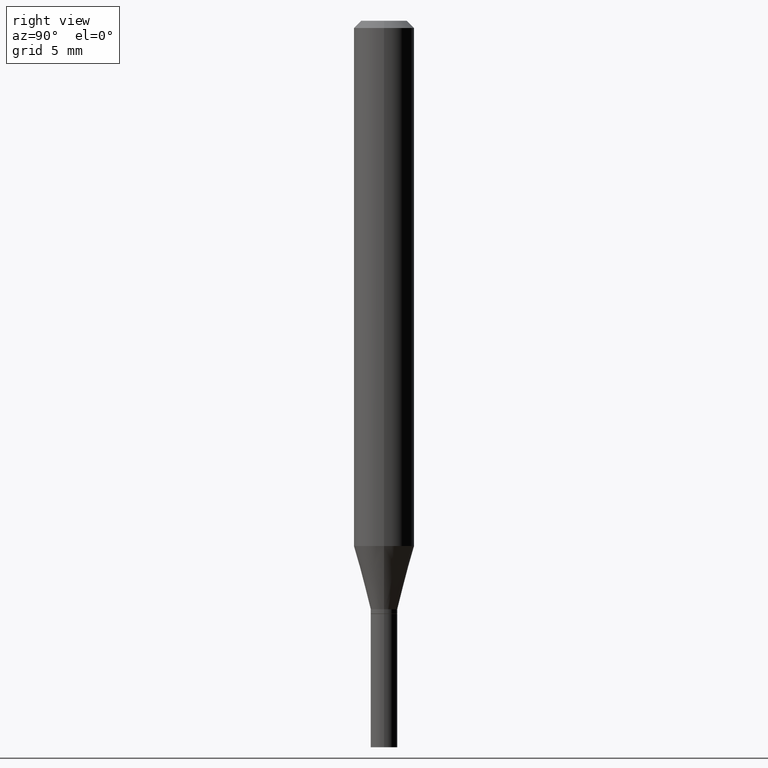
[diagram: clean part render]
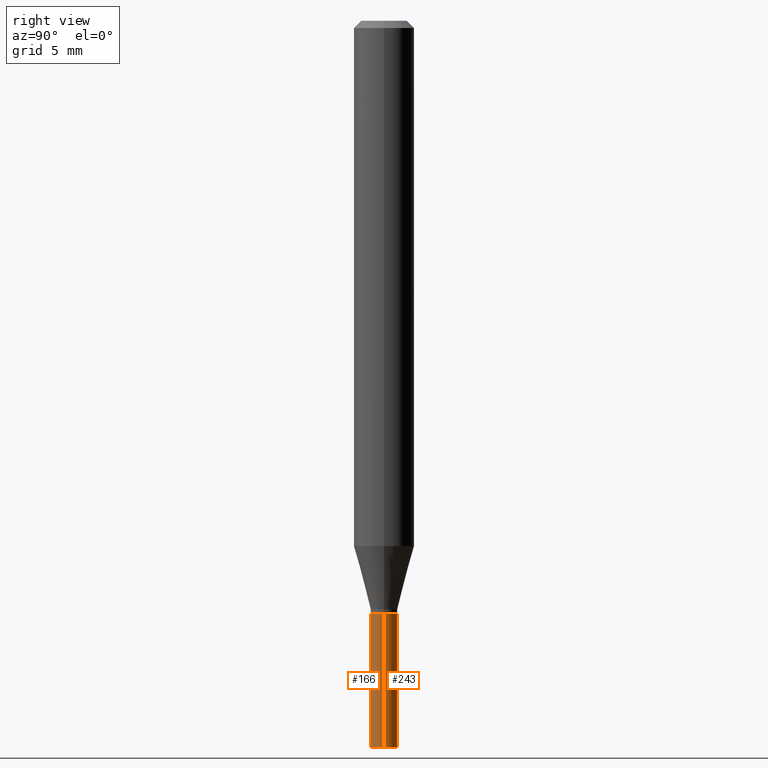
[diagram: same view with one multi-face feature highlighted, each face labeled with its STEP entity id]
A machine part, right view. The highlighted faces form ONE feature: a constant-radius fillet chain: 2 tangent blend faces with common blend radius 0.6985 mm. The faces share edges in the B-rep.
Their STEP definitions:
[1] entity #166 (Cylinder):
#7 = LINE ( 'NONE', #83, #188 ) ;
#12 = DIRECTION ( 'NONE',  ( -2.445468806185136877E-29, 3.491481338843145188E-15, 1.000000000000000000 ) ) ;
#13 = ORIENTED_EDGE ( 'NONE', *, *, #53, .T. ) ;
#26 = EDGE_CURVE ( 'NONE', #89, #409, #230, .T. ) ;
#31 = DIRECTION ( 'NONE',  ( 1.000000000000000000, -6.982962677686262766E-15, 0.000000000000000000 ) ) ;
#34 = ORIENTED_EDGE ( 'NONE', *, *, #232, .F. ) ;
#37 = CARTESIAN_POINT ( 'NONE',  ( -0.02750000000000000014, -4.561744071839757644E-15, -1.225000000000000089 ) ) ;
#53 = EDGE_CURVE ( 'NONE', #447, #332, #310, .T. ) ;
#83 = CARTESIAN_POINT ( 'NONE',  ( -0.02750000000000000014, 1.953992523340275521E-16, -1.352707149820099181E-30 ) ) ;
#89 = VERTEX_POINT ( 'NONE', #37 ) ;
#95 = AXIS2_PLACEMENT_3D ( 'NONE', #140, #185, #221 ) ;
#119 = EDGE_CURVE ( 'NONE', #332, #409, #217, .T. ) ;
#126 = ORIENTED_EDGE ( 'NONE', *, *, #26, .F. ) ;
#140 = CARTESIAN_POINT ( 'NONE',  ( 3.668203209277704895E-29, -5.237222008264718177E-15, -1.500000000000000222 ) ) ;
#143 = CARTESIAN_POINT ( 'NONE',  ( 0.02750000000000000014, -1.920314736363723444E-16, 1.340948613343882413E-30 ) ) ;
#166 = ADVANCED_FACE ( 'NONE', ( #284 ), #422, .T. ) ;
#178 = CARTESIAN_POINT ( 'NONE',  ( 0.02750000000000000014, -4.469096113719225841E-15, -1.225000000000000089 ) ) ;
#185 = DIRECTION ( 'NONE',  ( -2.445468806185136597E-29, 3.491481338843145583E-15, 1.000000000000000000 ) ) ;
#188 = VECTOR ( 'NONE', #12, 39.37007874015748143 ) ;
#211 = CARTESIAN_POINT ( 'NONE',  ( 0.02750000000000000014, -5.429253481901091458E-15, -1.500000000000000222 ) ) ;
#214 = AXIS2_PLACEMENT_3D ( 'NONE', #251, #363, #366 ) ;
#217 = LINE ( 'NONE', #143, #432 ) ;
#221 = DIRECTION ( 'NONE',  ( 1.000000000000000000, -6.982962677686279332E-15, 0.000000000000000000 ) ) ;
#230 = CIRCLE ( 'NONE', #257, 0.02750000000000000014 ) ;
#232 = EDGE_CURVE ( 'NONE', #447, #89, #7, .T. ) ;
#246 = DIRECTION ( 'NONE',  ( -2.445468806185136597E-29, 3.491481338843145583E-15, 1.000000000000000000 ) ) ;
#251 = CARTESIAN_POINT ( 'NONE',  ( 0.000000000000000000, 0.000000000000000000, 0.000000000000000000 ) ) ;
#257 = AXIS2_PLACEMENT_3D ( 'NONE', #326, #246, #31 ) ;
#284 = FACE_OUTER_BOUND ( 'NONE', #439, .T. ) ;
#310 = CIRCLE ( 'NONE', #95, 0.02750000000000000014 ) ;
#313 = DIRECTION ( 'NONE',  ( -2.445468806185136877E-29, 3.491481338843145188E-15, 1.000000000000000000 ) ) ;
#326 = CARTESIAN_POINT ( 'NONE',  ( 2.995699287576792443E-29, -4.277064640082853349E-15, -1.225000000000000089 ) ) ;
#332 = VERTEX_POINT ( 'NONE', #211 ) ;
#363 = DIRECTION ( 'NONE',  ( -2.445468806185136597E-29, 3.491481338843145583E-15, 1.000000000000000000 ) ) ;
#366 = DIRECTION ( 'NONE',  ( 1.000000000000000000, -6.982962677686266711E-15, 4.876176775795935793E-29 ) ) ;
#409 = VERTEX_POINT ( 'NONE', #178 ) ;
#422 = CYLINDRICAL_SURFACE ( 'NONE', #214, 0.02750000000000000014 ) ;
#430 = CARTESIAN_POINT ( 'NONE',  ( -0.02750000000000000014, -4.561744071839757644E-15, -1.500000000000000222 ) ) ;
#432 = VECTOR ( 'NONE', #313, 39.37007874015748143 ) ;
#439 = EDGE_LOOP ( 'NONE', ( #34, #13, #442, #126 ) ) ;
#442 = ORIENTED_EDGE ( 'NONE', *, *, #119, .T. ) ;
#447 = VERTEX_POINT ( 'NONE', #430 ) ;
[2] entity #243 (Cylinder):
#3 = CARTESIAN_POINT ( 'NONE',  ( 2.995699287576792443E-29, -4.277064640082853349E-15, -1.225000000000000089 ) ) ;
#4 = CARTESIAN_POINT ( 'NONE',  ( 3.668203209277704895E-29, -5.237222008264718177E-15, -1.500000000000000222 ) ) ;
#7 = LINE ( 'NONE', #83, #188 ) ;
#12 = DIRECTION ( 'NONE',  ( -2.445468806185136877E-29, 3.491481338843145188E-15, 1.000000000000000000 ) ) ;
#16 = EDGE_LOOP ( 'NONE', ( #395, #66, #258, #449 ) ) ;
#21 = CIRCLE ( 'NONE', #138, 0.02750000000000000014 ) ;
#27 = EDGE_CURVE ( 'NONE', #332, #447, #21, .T. ) ;
#37 = CARTESIAN_POINT ( 'NONE',  ( -0.02750000000000000014, -4.561744071839757644E-15, -1.225000000000000089 ) ) ;
#66 = ORIENTED_EDGE ( 'NONE', *, *, #232, .T. ) ;
#72 = DIRECTION ( 'NONE',  ( 1.000000000000000000, -6.982962677686262766E-15, 0.000000000000000000 ) ) ;
#79 = CARTESIAN_POINT ( 'NONE',  ( 0.000000000000000000, 0.000000000000000000, 0.000000000000000000 ) ) ;
#83 = CARTESIAN_POINT ( 'NONE',  ( -0.02750000000000000014, 1.953992523340275521E-16, -1.352707149820099181E-30 ) ) ;
#89 = VERTEX_POINT ( 'NONE', #37 ) ;
#119 = EDGE_CURVE ( 'NONE', #332, #409, #217, .T. ) ;
#138 = AXIS2_PLACEMENT_3D ( 'NONE', #4, #461, #149 ) ;
#143 = CARTESIAN_POINT ( 'NONE',  ( 0.02750000000000000014, -1.920314736363723444E-16, 1.340948613343882413E-30 ) ) ;
#147 = DIRECTION ( 'NONE',  ( -2.445468806185136597E-29, 3.491481338843145583E-15, 1.000000000000000000 ) ) ;
#149 = DIRECTION ( 'NONE',  ( 1.000000000000000000, -6.982962677686279332E-15, 0.000000000000000000 ) ) ;
#168 = EDGE_CURVE ( 'NONE', #409, #89, #359, .T. ) ;
#178 = CARTESIAN_POINT ( 'NONE',  ( 0.02750000000000000014, -4.469096113719225841E-15, -1.225000000000000089 ) ) ;
#188 = VECTOR ( 'NONE', #12, 39.37007874015748143 ) ;
#211 = CARTESIAN_POINT ( 'NONE',  ( 0.02750000000000000014, -5.429253481901091458E-15, -1.500000000000000222 ) ) ;
#217 = LINE ( 'NONE', #143, #432 ) ;
#229 = DIRECTION ( 'NONE',  ( -2.445468806185136597E-29, 3.491481338843145583E-15, 1.000000000000000000 ) ) ;
#232 = EDGE_CURVE ( 'NONE', #447, #89, #7, .T. ) ;
#243 = ADVANCED_FACE ( 'NONE', ( #334 ), #262, .T. ) ;
#258 = ORIENTED_EDGE ( 'NONE', *, *, #168, .F. ) ;
#262 = CYLINDRICAL_SURFACE ( 'NONE', #301, 0.02750000000000000014 ) ;
#301 = AXIS2_PLACEMENT_3D ( 'NONE', #79, #229, #369 ) ;
#313 = DIRECTION ( 'NONE',  ( -2.445468806185136877E-29, 3.491481338843145188E-15, 1.000000000000000000 ) ) ;
#332 = VERTEX_POINT ( 'NONE', #211 ) ;
#334 = FACE_OUTER_BOUND ( 'NONE', #16, .T. ) ;
#359 = CIRCLE ( 'NONE', #402, 0.02750000000000000014 ) ;
#369 = DIRECTION ( 'NONE',  ( 1.000000000000000000, -6.982962677686266711E-15, 4.876176775795935793E-29 ) ) ;
#395 = ORIENTED_EDGE ( 'NONE', *, *, #27, .T. ) ;
#402 = AXIS2_PLACEMENT_3D ( 'NONE', #3, #147, #72 ) ;
#409 = VERTEX_POINT ( 'NONE', #178 ) ;
#430 = CARTESIAN_POINT ( 'NONE',  ( -0.02750000000000000014, -4.561744071839757644E-15, -1.500000000000000222 ) ) ;
#432 = VECTOR ( 'NONE', #313, 39.37007874015748143 ) ;
#447 = VERTEX_POINT ( 'NONE', #430 ) ;
#449 = ORIENTED_EDGE ( 'NONE', *, *, #119, .F. ) ;
#461 = DIRECTION ( 'NONE',  ( -2.445468806185136597E-29, 3.491481338843145583E-15, 1.000000000000000000 ) ) ;